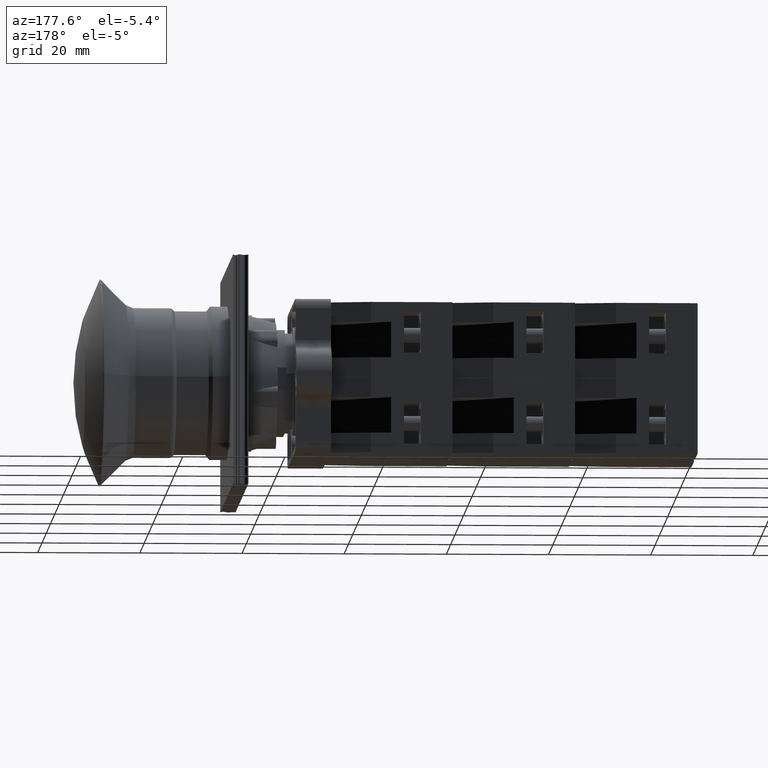
[diagram: clean part render]
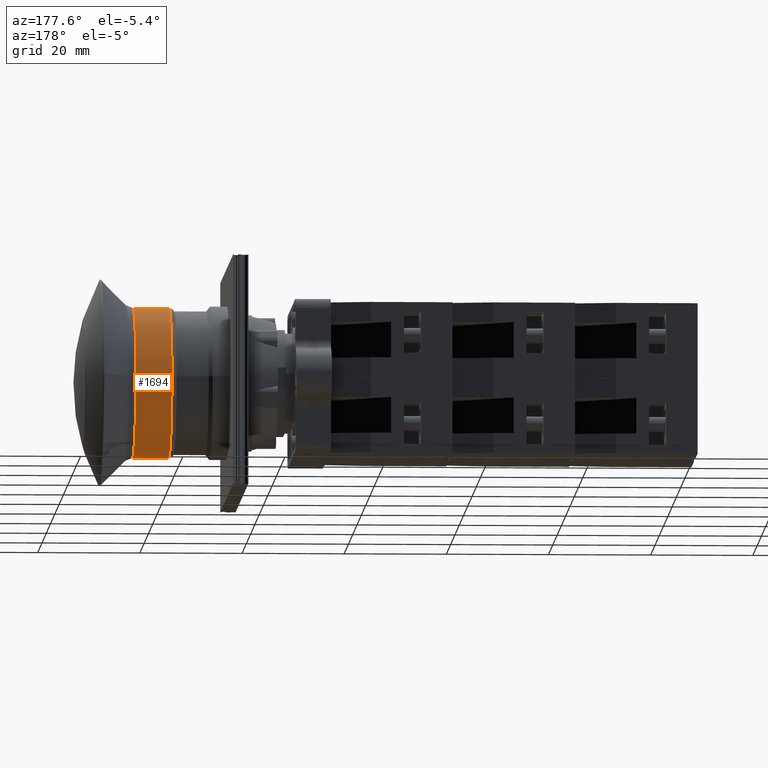
[diagram: same view with one face highlighted and labeled with its STEP entity id]
A machine part, auxiliary view. The second image highlights one B-rep face of the part: STEP entity #1694.
In plain terms, the highlighted cylindrical surface (bore or boss wall) has radius 14.65 mm, axis along (1, 0, 0).
Its self-contained STEP definition (entity closure, byte-faithful):
#1660=CARTESIAN_POINT('',(2.001686286184050,15.779839215727593,0.0));
#1661=VERTEX_POINT('',#1660);
#1662=CARTESIAN_POINT('',(2.001686286184050,1.129839215727505,0.0));
#1663=DIRECTION('',(1.0,0.0,0.0));
#1664=DIRECTION('',(0.0,1.0,0.0));
#1665=AXIS2_PLACEMENT_3D('',#1662,#1663,#1664);
#1666=CIRCLE('',#1665,14.650000000000089);
#1667=EDGE_CURVE('',#1661,#1661,#1666,.T.);
#1675=CARTESIAN_POINT('',(5.540709063319409,1.129839215727505,0.0));
#1676=DIRECTION('',(1.0,0.0,0.0));
#1677=DIRECTION('',(0.0,1.0,0.0));
#1678=AXIS2_PLACEMENT_3D('',#1675,#1676,#1677);
#1679=CYLINDRICAL_SURFACE('',#1678,14.650000000000091);
#1680=CARTESIAN_POINT('',(9.079731840454762,15.779839215727595,0.0));
#1681=VERTEX_POINT('',#1680);
#1682=CARTESIAN_POINT('',(9.079731840454762,1.129839215727505,0.0));
#1683=DIRECTION('',(1.0,0.0,0.0));
#1684=DIRECTION('',(0.0,1.0,0.0));
#1685=AXIS2_PLACEMENT_3D('',#1682,#1683,#1684);
#1686=CIRCLE('',#1685,14.650000000000091);
#1687=EDGE_CURVE('',#1681,#1681,#1686,.T.);
#1688=ORIENTED_EDGE('',*,*,#1687,.F.);
#1689=EDGE_LOOP('',(#1688));
#1690=FACE_OUTER_BOUND('',#1689,.T.);
#1691=ORIENTED_EDGE('',*,*,#1667,.T.);
#1692=EDGE_LOOP('',(#1691));
#1693=FACE_BOUND('',#1692,.T.);
#1694=ADVANCED_FACE('',(#1690,#1693),#1679,.T.);